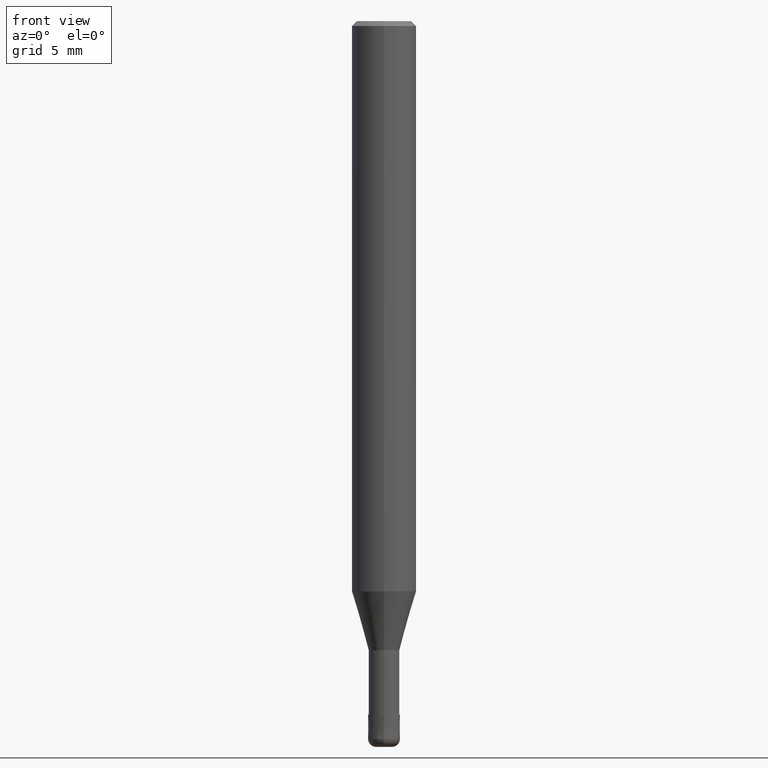
[diagram: clean part render]
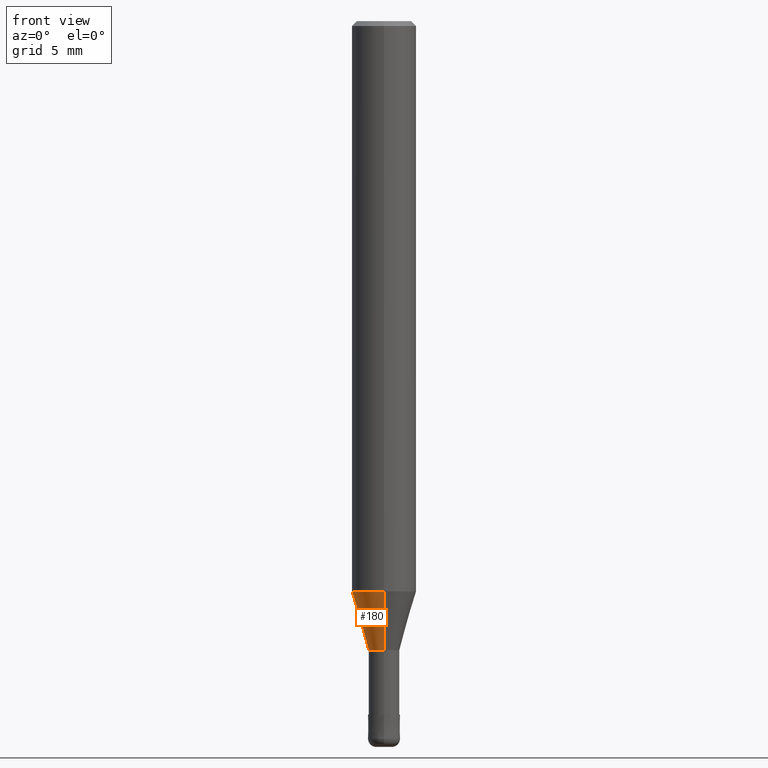
[diagram: same view with one face highlighted and labeled with its STEP entity id]
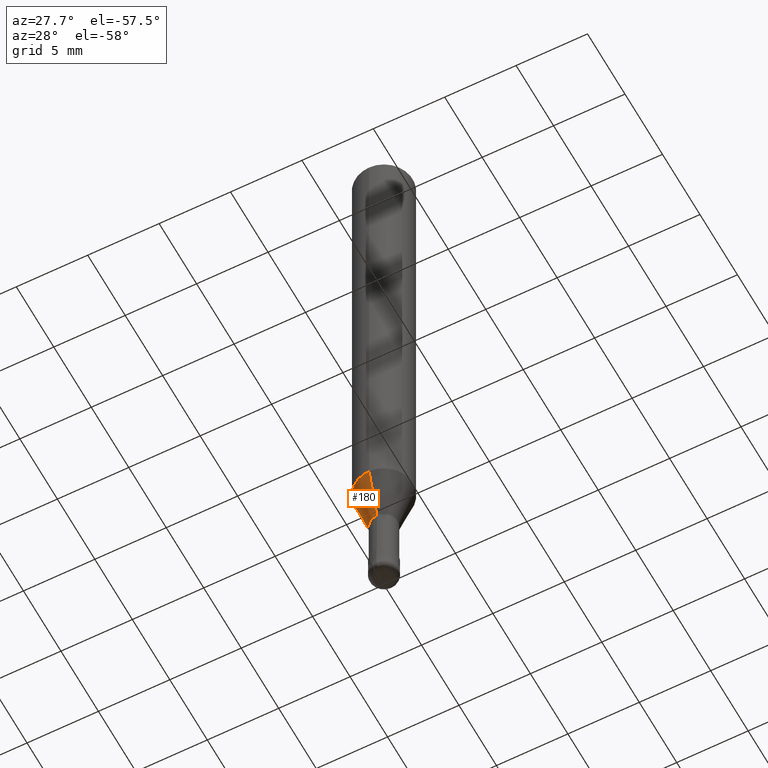
[diagram: same view with one face highlighted and labeled with its STEP entity id]
A machine part, front view. The second image highlights one B-rep face of the part: STEP entity #180.
A second angle (auxiliary view) of the same face is appended — the face is thin or edge-on in the first view.
In plain terms, the highlighted conical surface has half-angle 16.001 deg.
Its self-contained STEP definition (entity closure, byte-faithful):
#126=EDGE_CURVE('',#174,#232,#281,.T.);
#166=VERTEX_POINT('',#327);
#174=VERTEX_POINT('',#337);
#180=ADVANCED_FACE('',(#343),#344,.T.);
#190=EDGE_CURVE('',#232,#194,#355,.T.);
#194=VERTEX_POINT('',#359);
#206=EDGE_CURVE('',#174,#166,#372,.T.);
#208=EDGE_CURVE('',#194,#166,#374,.T.);
#232=VERTEX_POINT('',#403);
#281=LINE('',#451,#452);
#327=CARTESIAN_POINT('',(0.0,0.95495,-39.0));
#337=CARTESIAN_POINT('',(1.16943783758268E-016,-0.95495,-39.0));
#343=FACE_OUTER_BOUND('',#528,.T.);
#344=CONICAL_SURFACE('',#529,1.47745,0.279277990456152);
#355=CIRCLE('',#542,1.99995);
#359=CARTESIAN_POINT('',(0.0,1.99995,-35.356));
#372=CIRCLE('',#563,0.95495);
#374=LINE('',#566,#567);
#403=CARTESIAN_POINT('',(2.44915147732706E-016,-1.99995,-35.356));
#451=CARTESIAN_POINT('',(1.80929465745487E-016,-1.47745,-37.178));
#452=VECTOR('',#630,1.0);
#528=EDGE_LOOP('',(#723,#724,#725,#726));
#529=AXIS2_PLACEMENT_3D('',#727,#728,#729);
#542=AXIS2_PLACEMENT_3D('',#741,#742,#743);
#563=AXIS2_PLACEMENT_3D('',#756,#757,#758);
#566=CARTESIAN_POINT('',(-1.80929465745487E-016,1.47745,-37.178));
#567=VECTOR('',#759,1.0);
#630=DIRECTION('',(3.37577051438857E-017,-0.275661685393983,0.961254719211172));
#723=ORIENTED_EDGE('',*,*,#208,.T.);
#724=ORIENTED_EDGE('',*,*,#206,.F.);
#725=ORIENTED_EDGE('',*,*,#126,.T.);
#726=ORIENTED_EDGE('',*,*,#190,.T.);
#727=CARTESIAN_POINT('',(0.0,0.0,-37.178));
#728=DIRECTION('',(-0.0,-0.0,1.0));
#729=DIRECTION('',(0.0,1.0,0.0));
#741=CARTESIAN_POINT('',(0.0,0.0,-35.356));
#742=DIRECTION('',(0.0,0.0,-1.0));
#743=DIRECTION('',(0.0,1.0,0.0));
#756=CARTESIAN_POINT('',(0.0,0.0,-39.0));
#757=DIRECTION('',(0.0,0.0,-1.0));
#758=DIRECTION('',(0.0,1.0,0.0));
#759=DIRECTION('',(3.37577051438857E-017,-0.275661685393983,-0.961254719211172));